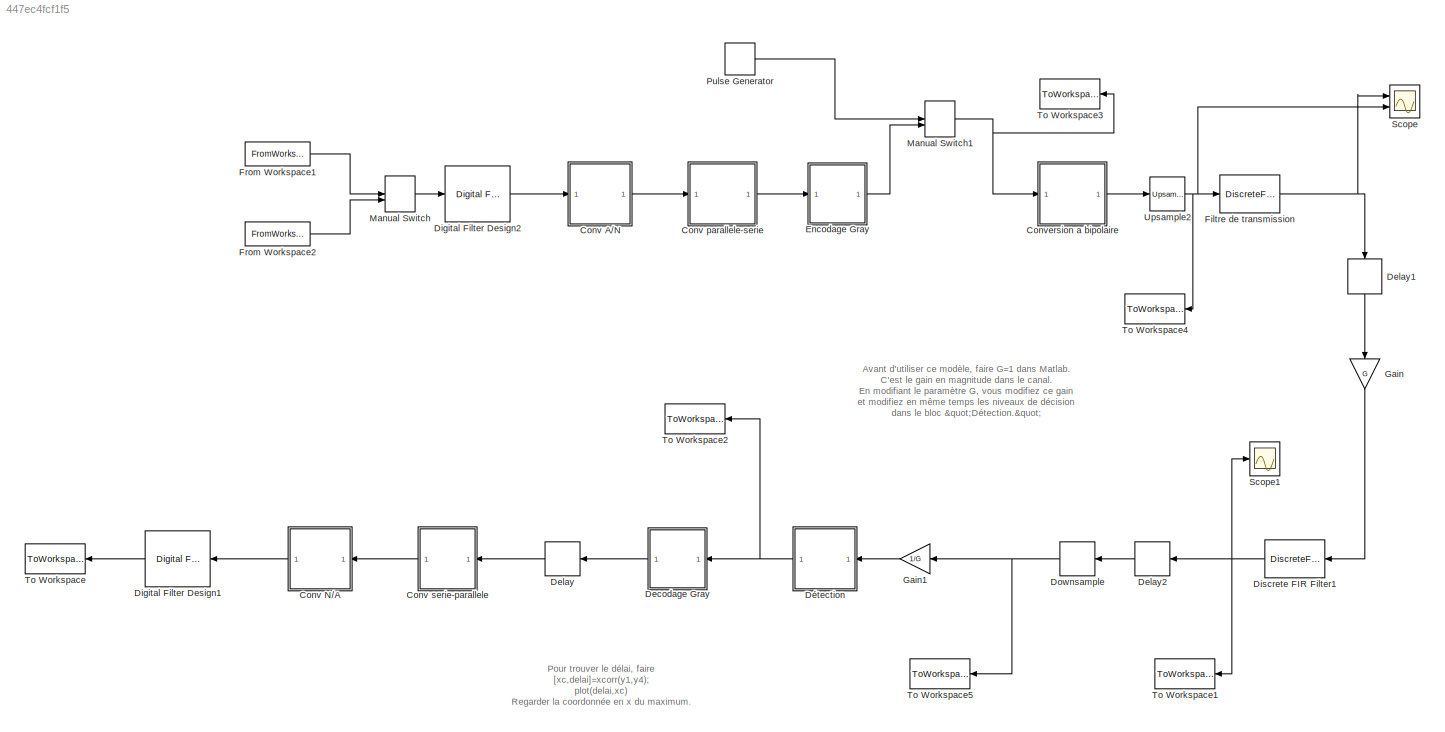
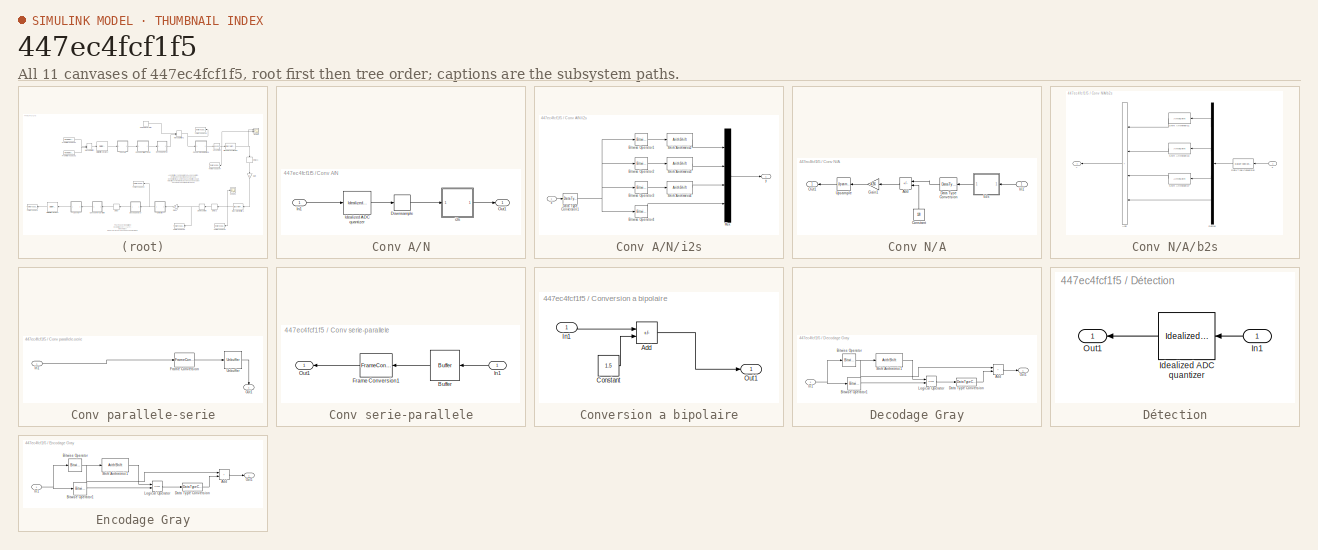
[diagram: thumbnail index - all 11 canvases of the model, root first then tree order]
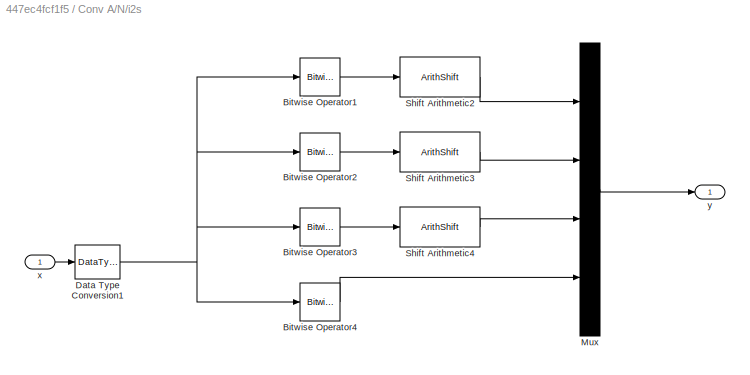
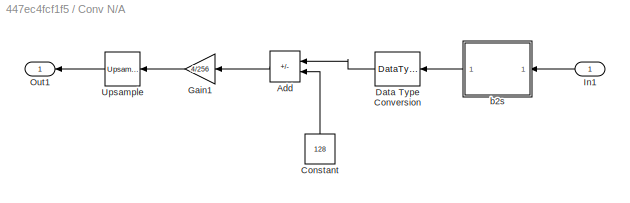
MODEL slx_447ec4fcf1f5
KIND model
CONFIG AbsTol = auto
CONFIG EnableMultiTasking = on
CONFIG FixedStep = auto
CONFIG MaxStep = auto
CONFIG MinStep = auto
CONFIG RelTol = 1e-3
CONFIG SampleTimeConstraint = Unconstrained
CONFIG SolverName = FixedStepDiscrete
CONFIG StartTime = 0.0
CONFIG StopTime = 8.75
BLOCK [SubSystem] Conv A//N
  Ports = [1, 1]
  RequestExecContextInheritance = off
BLOCK [DownSample] Conv A//N/Downsample
  InputProcessing = Elements as channels (sample based)
  RateOptions = Allow multirate processing
  UserDataPersistent = on
BLOCK [Reference] Conv A//N/Idealized ADC quantizer  REF=simulink_extras/Additional
Discrete/Idealized ADC quantizer
  AttributesFormatString = (settings: %<NumberOfConverterBits>-bit converter\nVmin: %<Vmin>, Vmax: %<Vmax>)
  Ports = [1, 1]
  SourceBlock = simulink_extras/Additional\nDiscrete/Idealized ADC quantizer
  SourceProductBaseCode = SL
  SourceType = IdealADC
BLOCK [Inport] Conv A//N/In1
BLOCK [Outport] Conv A//N/Out1
  VectorParamsAs1DForOutWhenUnconnected = off
BLOCK [SubSystem] Conv A//N/i2s
  Ports = [1, 1]
  RequestExecContextInheritance = off
BLOCK [Reference] Conv A//N/i2s/Bitwise Operator1  REF=simulink/Logic and Bit
Operations/Bitwise
Operator
  Ports = [1, 1]
  SourceBlock = simulink/Logic and Bit\nOperations/Bitwise\nOperator
  SourceProductBaseCode = SL
  SourceType = Bitwise Operator
BLOCK [Reference] Conv A//N/i2s/Bitwise Operator2  REF=simulink/Logic and Bit
Operations/Bitwise
Operator
  Ports = [1, 1]
  SourceBlock = simulink/Logic and Bit\nOperations/Bitwise\nOperator
  SourceProductBaseCode = SL
  SourceType = Bitwise Operator
BLOCK [Reference] Conv A//N/i2s/Bitwise Operator3  REF=simulink/Logic and Bit
Operations/Bitwise
Operator
  Ports = [1, 1]
  SourceBlock = simulink/Logic and Bit\nOperations/Bitwise\nOperator
  SourceProductBaseCode = SL
  SourceType = Bitwise Operator
BLOCK [Reference] Conv A//N/i2s/Bitwise Operator4  REF=simulink/Logic and Bit
Operations/Bitwise
Operator
  Ports = [1, 1]
  SourceBlock = simulink/Logic and Bit\nOperations/Bitwise\nOperator
  SourceProductBaseCode = SL
  SourceType = Bitwise Operator
BLOCK [DataTypeConversion] Conv A//N/i2s/Data Type Conversion1
  OutDataTypeStr = int16
  RndMeth = Floor
  SaturateOnIntegerOverflow = off
BLOCK [Mux] Conv A//N/i2s/Mux
  DisplayOption = bar
  Ports = [4, 1]
BLOCK [ArithShift] Conv A//N/i2s/Shift Arithmetic2
  BitShiftDirection = Right
  BitShiftNumber = 6
  InputPortMap = u0
  Ports = [1, 1]
BLOCK [ArithShift] Conv A//N/i2s/Shift Arithmetic3
  BitShiftDirection = Right
  BitShiftNumber = 4
  InputPortMap = u0
  Ports = [1, 1]
BLOCK [ArithShift] Conv A//N/i2s/Shift Arithmetic4
  BitShiftDirection = Right
  BitShiftNumber = 2
  InputPortMap = u0
  Ports = [1, 1]
BLOCK [Inport] Conv A//N/i2s/x
BLOCK [Outport] Conv A//N/i2s/y
  VectorParamsAs1DForOutWhenUnconnected = off
BLOCK [SubSystem] Conv N//A
  Ports = [1, 1]
  RequestExecContextInheritance = off
BLOCK [Sum] Conv N//A/Add
  IconShape = rectangular
  Inputs = +-
  Ports = [2, 1]
BLOCK [Constant] Conv N//A/Constant
  NameLocation = right
  Value = 128
BLOCK [DataTypeConversion] Conv N//A/Data Type Conversion
  OutDataTypeStr = double
  RndMeth = Floor
  SaturateOnIntegerOverflow = off
BLOCK [Gain] Conv N//A/Gain1
  Gain = 4/256
  NameLocation = top
BLOCK [Inport] Conv N//A/In1
BLOCK [Outport] Conv N//A/Out1
  VectorParamsAs1DForOutWhenUnconnected = off
BLOCK [Reference] Conv N//A/Upsample  REF=dspsigops/Upsample
  Ports = [1, 1]
  SourceBlock = dspsigops/Upsample
  SourceProductBaseCode = DS
  SourceType = Upsample
  UserDataPersistent = on
BLOCK [SubSystem] Conv N//A/b2s
  Ports = [1, 1]
  RequestExecContextInheritance = off
BLOCK [Sum] Conv N//A/b2s/Add
  IconShape = rectangular
  Inputs = ++++
  Ports = [4, 1]
BLOCK [DataTypeConversion] Conv N//A/b2s/Data Type Conversion
  OutDataTypeStr = int16
  RndMeth = Round
  SaturateOnIntegerOverflow = off
BLOCK [Demux] Conv N//A/b2s/Demux
  Ports = [1, 4]
BLOCK [ArithShift] Conv N//A/b2s/Shift Arithmetic1
  BitShiftDirection = Left
  BitShiftNumber = 6
  InputPortMap = u0
  Ports = [1, 1]
BLOCK [ArithShift] Conv N//A/b2s/Shift Arithmetic3
  BitShiftDirection = Left
  BitShiftNumber = 4
  InputPortMap = u0
  Ports = [1, 1]
BLOCK [ArithShift] Conv N//A/b2s/Shift Arithmetic7
  BitShiftDirection = Left
  BitShiftNumber = 2
  InputPortMap = u0
  Ports = [1, 1]
BLOCK [Inport] Conv N//A/b2s/x
BLOCK [Outport] Conv N//A/b2s/y
  VectorParamsAs1DForOutWhenUnconnected = off
BLOCK [SubSystem] Conv parallele-serie
  Ports = [1, 1]
  RequestExecContextInheritance = off
BLOCK [FrameConversion] Conv parallele-serie/Frame Conversion
  Ports = [1, 1]
BLOCK [Inport] Conv parallele-serie/In1
BLOCK [Outport] Conv parallele-serie/Out1
  NameLocation = right
  VectorParamsAs1DForOutWhenUnconnected = off
BLOCK [Unbuffer] Conv parallele-serie/Unbuffer
  Ports = [1, 1]
BLOCK [SubSystem] Conv serie-parallele
  Ports = [1, 1]
  RequestExecContextInheritance = off
BLOCK [Buffer] Conv serie-parallele/Buffer
  N = 4
BLOCK [FrameConversion] Conv serie-parallele/Frame Conversion1
  OutFrame = Sample-based
  Ports = [1, 1]
BLOCK [Inport] Conv serie-parallele/In1
BLOCK [Outport] Conv serie-parallele/Out1
  VectorParamsAs1DForOutWhenUnconnected = off
BLOCK [SubSystem] Conversion a bipolaire
  Ports = [1, 1]
  RequestExecContextInheritance = off
BLOCK [Sum] Conversion a bipolaire/Add
  IconShape = rectangular
  Inputs = +-
  Ports = [2, 1]
BLOCK [Constant] Conversion a bipolaire/Constant
  Value = 1.5
BLOCK [Inport] Conversion a bipolaire/In1
BLOCK [Outport] Conversion a bipolaire/Out1
  VectorParamsAs1DForOutWhenUnconnected = off
BLOCK [SubSystem] Decodage Gray
  Ports = [1, 1]
  RequestExecContextInheritance = off
BLOCK [Sum] Decodage Gray/Add
  IconShape = rectangular
  Ports = [2, 1]
BLOCK [Reference] Decodage Gray/Bitwise Operator  REF=simulink/Logic and Bit
Operations/Bitwise
Operator
  Ports = [1, 1]
  SourceBlock = simulink/Logic and Bit\nOperations/Bitwise\nOperator
  SourceProductBaseCode = SL
  SourceType = Bitwise Operator
BLOCK [Reference] Decodage Gray/Bitwise Operator1  REF=simulink/Logic and Bit
Operations/Bitwise
Operator
  Ports = [1, 1]
  SourceBlock = simulink/Logic and Bit\nOperations/Bitwise\nOperator
  SourceProductBaseCode = SL
  SourceType = Bitwise Operator
BLOCK [DataTypeConversion] Decodage Gray/Data Type Conversion
  OutDataTypeStr = int8
  RndMeth = Floor
  SaturateOnIntegerOverflow = off
BLOCK [Inport] Decodage Gray/In1
BLOCK [Logic] Decodage Gray/Logical Operator
  AllPortsSameDT = off
  Operator = XOR
  Ports = [2, 1]
BLOCK [Outport] Decodage Gray/Out1
  VectorParamsAs1DForOutWhenUnconnected = off
BLOCK [ArithShift] Decodage Gray/Shift Arithmetic1
  BitShiftDirection = Right
  BitShiftNumber = 1
  InputPortMap = u0
  Ports = [1, 1]
BLOCK [Delay] Delay
  DelayLength = 1
  InitialCondition = 0
  InputPortMap = u0
  Ports = [1, 1]
BLOCK [Delay] Delay1
  DelayLength = 12
  InitialCondition = 0
  InputPortMap = u0
  NameLocation = right
  Ports = [1, 1]
BLOCK [Delay] Delay2
  DelayLength = 9
  InitialCondition = 0
  InputPortMap = u0
  Ports = [1, 1]
BLOCK [Reference] Digital Filter Design1  REF=dsparch4/Digital
Filter Design
  Ports = [1, 1]
  SourceBlock = dsparch4/Digital\nFilter Design
  SourceProductBaseCode = DS
  SourceType = Digital Filter Design
  UserDataPersistent = on
BLOCK [Reference] Digital Filter Design2  REF=dsparch4/Digital
Filter Design
  NameLocation = top
  Ports = [1, 1]
  SourceBlock = dsparch4/Digital\nFilter Design
  SourceProductBaseCode = DS
  SourceType = Digital Filter Design
  UserDataPersistent = on
BLOCK [DiscreteFir] Discrete FIR Filter1
  Coefficients = ones(1,20)
  InputPortMap = u0
  OutputPortMap = o0
  Ports = [1, 1]
BLOCK [DownSample] Downsample
  InputProcessing = Elements as channels (sample based)
  N = 20
  RateOptions = Allow multirate processing
BLOCK [SubSystem] Détection
  Ports = [1, 1]
  RequestExecContextInheritance = off
BLOCK [Reference] Détection/Idealized ADC quantizer  REF=simulink_extras/Additional
Discrete/Idealized ADC quantizer
  AttributesFormatString = (settings: %<NumberOfConverterBits>-bit converter\nVmin: %<Vmin>, Vmax: %<Vmax>)
  Ports = [1, 1]
  SourceBlock = simulink_extras/Additional\nDiscrete/Idealized ADC quantizer
  SourceProductBaseCode = SL
  SourceType = IdealADC
BLOCK [Inport] Détection/In1
BLOCK [Outport] Détection/Out1
BLOCK [SubSystem] Encodage Gray
  Ports = [1, 1]
  RequestExecContextInheritance = off
BLOCK [Sum] Encodage Gray/Add
  IconShape = rectangular
  Ports = [2, 1]
BLOCK [Reference] Encodage Gray/Bitwise Operator  REF=simulink/Logic and Bit
Operations/Bitwise
Operator
  Ports = [1, 1]
  SourceBlock = simulink/Logic and Bit\nOperations/Bitwise\nOperator
  SourceProductBaseCode = SL
  SourceType = Bitwise Operator
BLOCK [Reference] Encodage Gray/Bitwise Operator1  REF=simulink/Logic and Bit
Operations/Bitwise
Operator
  Ports = [1, 1]
  SourceBlock = simulink/Logic and Bit\nOperations/Bitwise\nOperator
  SourceProductBaseCode = SL
  SourceType = Bitwise Operator
BLOCK [DataTypeConversion] Encodage Gray/Data Type Conversion
  OutDataTypeStr = int8
  RndMeth = Floor
  SaturateOnIntegerOverflow = off
BLOCK [Inport] Encodage Gray/In1
BLOCK [Logic] Encodage Gray/Logical Operator
  AllPortsSameDT = off
  Operator = XOR
  Ports = [2, 1]
BLOCK [Outport] Encodage Gray/Out1
  VectorParamsAs1DForOutWhenUnconnected = off
BLOCK [ArithShift] Encodage Gray/Shift Arithmetic1
  BitShiftDirection = Right
  BitShiftNumber = 1
  InputPortMap = u0
  Ports = [1, 1]
BLOCK [DiscreteFir] Filtre de transmission
  Coefficients = ones(1,20)
  InputPortMap = u0
  OutputPortMap = o0
  Ports = [1, 1]
BLOCK [FromWorkspace] From Workspace1
  Interpolate = off
  OutputAfterFinalValue = Setting to zero
  SampleTime = 1/16000
  VariableName = Sonm16
BLOCK [FromWorkspace] From Workspace2
  Interpolate = off
  OutputAfterFinalValue = Setting to zero
  SampleTime = 1/16000
  VariableName = Sonf16
BLOCK [Gain] Gain
  Gain = G
  NameLocation = left
BLOCK [Gain] Gain1
  Gain = 1/G
  NameLocation = top
BLOCK [ManualSwitch] Manual Switch
BLOCK [ManualSwitch] Manual Switch1
  CurrentSetting = 0
BLOCK [DiscretePulseGenerator] Pulse Generator
  Amplitude = 3
  Ports = [0, 1]
  SampleTime = 1/32000
BLOCK [Scope] Scope
  Floating = off
  NumInputPorts = 2
  Ports = [2]
  ScopeSpecificationString = Simulink.scopes.TimeScopeBlockCfg('CurrentConfiguration', extmgr.ConfigurationSet(extmgr.Configuration('Core','General UI',true),extmgr.Configuration('Core','Source UI',true),extmgr.Configuration('Sources','WiredSimulink',true),extmgr.Configuration('Visuals','Time Domain',true,'SerializedDisplays',{struct('MinYLimReal','-1.875','MaxYLimReal','1.875','YLabelReal','','MinYLimMag','0.00000','MaxYLimM...<+1419ch>
BLOCK [Scope] Scope1
  Floating = off
  NumInputPorts = 1
  Ports = [1]
  ScopeSpecificationString = Simulink.scopes.TimeScopeBlockCfg('CurrentConfiguration', extmgr.ConfigurationSet(extmgr.Configuration('Core','General UI',true),extmgr.Configuration('Core','Source UI',true),extmgr.Configuration('Sources','WiredSimulink',true,'DataLoggingVariableName','ScopeData1'),extmgr.Configuration('Visuals','Time Domain',true,'SerializedDisplays',{struct('MinYLimReal','-37.5','MaxYLimReal','37.5','YLabelReal...<+1436ch>
BLOCK [ToWorkspace] To Workspace
  MaxDataPoints = inf
  Ports = [1]
  SampleTime = -1
  Save2DSignal = 2-D array (concatenate along first dimension)
  VariableName = y
BLOCK [ToWorkspace] To Workspace1
  MaxDataPoints = inf
  Ports = [1]
  SampleTime = -1
  Save2DSignal = 2-D array (concatenate along first dimension)
  VariableName = y1
BLOCK [ToWorkspace] To Workspace2
  MaxDataPoints = inf
  Ports = [1]
  SampleTime = -1
  Save2DSignal = 2-D array (concatenate along first dimension)
  VariableName = y2
BLOCK [ToWorkspace] To Workspace3
  MaxDataPoints = inf
  Ports = [1]
  SampleTime = -1
  Save2DSignal = 2-D array (concatenate along first dimension)
  VariableName = y3
BLOCK [ToWorkspace] To Workspace4
  MaxDataPoints = inf
  Ports = [1]
  SampleTime = -1
  Save2DSignal = 2-D array (concatenate along first dimension)
  VariableName = y4
BLOCK [ToWorkspace] To Workspace5
  MaxDataPoints = inf
  Ports = [1]
  SampleTime = -1
  Save2DSignal = 2-D array (concatenate along first dimension)
  VariableName = y5
BLOCK [Reference] Upsample2  REF=dspsigops/Upsample
  Ports = [1, 1]
  SourceBlock = dspsigops/Upsample
  SourceProductBaseCode = DS
  SourceType = Upsample
  UserDataPersistent = on
ANNOTATION (root): Avant d'utiliser ce modèle, faire G=1 dans Matlab. C'est le gain en magnitude dans le canal. En modifiant le paramètre G, vous modifiez ce gain et modifiez en même temps les niveaux de décision dans le bloc "Détection."
ANNOTATION (root): Pour trouver le délai, faire [xc,delai]=xcorr(y1,y4); plot(delai,xc) Regarder la coordonnée en x du maximum.
LINE Conv A//N/Downsample:1 -> Conv A//N/i2s:1
LINE Conv A//N/Idealized ADC quantizer:1 -> Conv A//N/Downsample:1
LINE Conv A//N/In1:1 -> Conv A//N/Idealized ADC quantizer:1
LINE Conv A//N/i2s/Bitwise Operator1:1 -> Conv A//N/i2s/Shift Arithmetic2:1
LINE Conv A//N/i2s/Bitwise Operator2:1 -> Conv A//N/i2s/Shift Arithmetic3:1
LINE Conv A//N/i2s/Bitwise Operator3:1 -> Conv A//N/i2s/Shift Arithmetic4:1
LINE Conv A//N/i2s/Bitwise Operator4:1 -> Conv A//N/i2s/Mux:4
NET Conv A//N/i2s/Data Type Conversion1:1 -> Conv A//N/i2s/Bitwise Operator1:1, Conv A//N/i2s/Bitwise Operator2:1, Conv A//N/i2s/Bitwise Operator3:1, Conv A//N/i2s/Bitwise Operator4:1
LINE Conv A//N/i2s/Mux:1 -> Conv A//N/i2s/y:1
LINE Conv A//N/i2s/Shift Arithmetic2:1 -> Conv A//N/i2s/Mux:1
LINE Conv A//N/i2s/Shift Arithmetic3:1 -> Conv A//N/i2s/Mux:2
LINE Conv A//N/i2s/Shift Arithmetic4:1 -> Conv A//N/i2s/Mux:3
LINE Conv A//N/i2s/x:1 -> Conv A//N/i2s/Data Type Conversion1:1
LINE Conv A//N/i2s:1 -> Conv A//N/Out1:1
LINE Conv A//N:1 -> Conv parallele-serie:1
LINE Conv N//A/Add:1 -> Conv N//A/Gain1:1
LINE Conv N//A/Constant:1 -> Conv N//A/Add:2
LINE Conv N//A/Data Type Conversion:1 -> Conv N//A/Add:1
LINE Conv N//A/Gain1:1 -> Conv N//A/Upsample:1
LINE Conv N//A/In1:1 -> Conv N//A/b2s:1
LINE Conv N//A/Upsample:1 -> Conv N//A/Out1:1
LINE Conv N//A/b2s/Add:1 -> Conv N//A/b2s/y:1
LINE Conv N//A/b2s/Data Type Conversion:1 -> Conv N//A/b2s/Demux:1
LINE Conv N//A/b2s/Demux:1 -> Conv N//A/b2s/Shift Arithmetic1:1
LINE Conv N//A/b2s/Demux:2 -> Conv N//A/b2s/Shift Arithmetic3:1
LINE Conv N//A/b2s/Demux:3 -> Conv N//A/b2s/Shift Arithmetic7:1
LINE Conv N//A/b2s/Demux:4 -> Conv N//A/b2s/Add:4
LINE Conv N//A/b2s/Shift Arithmetic1:1 -> Conv N//A/b2s/Add:1
LINE Conv N//A/b2s/Shift Arithmetic3:1 -> Conv N//A/b2s/Add:2
LINE Conv N//A/b2s/Shift Arithmetic7:1 -> Conv N//A/b2s/Add:3
LINE Conv N//A/b2s/x:1 -> Conv N//A/b2s/Data Type Conversion:1
LINE Conv N//A/b2s:1 -> Conv N//A/Data Type Conversion:1
LINE Conv N//A:1 -> Digital Filter Design1:1
LINE Conv parallele-serie/Frame Conversion:1 -> Conv parallele-serie/Unbuffer:1
LINE Conv parallele-serie/In1:1 -> Conv parallele-serie/Frame Conversion:1
LINE Conv parallele-serie/Unbuffer:1 -> Conv parallele-serie/Out1:1
LINE Conv parallele-serie:1 -> Encodage Gray:1
LINE Conv serie-parallele/Buffer:1 -> Conv serie-parallele/Frame Conversion1:1
LINE Conv serie-parallele/Frame Conversion1:1 -> Conv serie-parallele/Out1:1
LINE Conv serie-parallele/In1:1 -> Conv serie-parallele/Buffer:1
LINE Conv serie-parallele:1 -> Conv N//A:1
LINE Conversion a bipolaire/Add:1 -> Conversion a bipolaire/Out1:1
LINE Conversion a bipolaire/Constant:1 -> Conversion a bipolaire/Add:2
LINE Conversion a bipolaire/In1:1 -> Conversion a bipolaire/Add:1
LINE Conversion a bipolaire:1 -> Upsample2:1
LINE Decodage Gray/Add:1 -> Decodage Gray/Out1:1
LINE Decodage Gray/Bitwise Operator1:1 -> Decodage Gray/Logical Operator:2
NET Decodage Gray/Bitwise Operator:1 -> Decodage Gray/Add:1, Decodage Gray/Shift Arithmetic1:1
LINE Decodage Gray/Data Type Conversion:1 -> Decodage Gray/Add:2
NET Decodage Gray/In1:1 -> Decodage Gray/Bitwise Operator1:1, Decodage Gray/Bitwise Operator:1
LINE Decodage Gray/Logical Operator:1 -> Decodage Gray/Data Type Conversion:1
LINE Decodage Gray/Shift Arithmetic1:1 -> Decodage Gray/Logical Operator:1
LINE Decodage Gray:1 -> Delay:1
LINE Delay1:1 -> Gain:1
LINE Delay2:1 -> Downsample:1
LINE Delay:1 -> Conv serie-parallele:1
LINE Digital Filter Design1:1 -> To Workspace:1
LINE Digital Filter Design2:1 -> Conv A//N:1
NET Discrete FIR Filter1:1 -> Delay2:1, Scope1:1, To Workspace1:1
NET Downsample:1 -> Gain1:1, To Workspace5:1
LINE Détection/Idealized ADC quantizer:1 -> Détection/Out1:1
LINE Détection/In1:1 -> Détection/Idealized ADC quantizer:1
NET Détection:1 -> Decodage Gray:1, To Workspace2:1
LINE Encodage Gray/Add:1 -> Encodage Gray/Out1:1
LINE Encodage Gray/Bitwise Operator1:1 -> Encodage Gray/Logical Operator:2
NET Encodage Gray/Bitwise Operator:1 -> Encodage Gray/Add:1, Encodage Gray/Shift Arithmetic1:1
LINE Encodage Gray/Data Type Conversion:1 -> Encodage Gray/Add:2
NET Encodage Gray/In1:1 -> Encodage Gray/Bitwise Operator1:1, Encodage Gray/Bitwise Operator:1
LINE Encodage Gray/Logical Operator:1 -> Encodage Gray/Data Type Conversion:1
LINE Encodage Gray/Shift Arithmetic1:1 -> Encodage Gray/Logical Operator:1
LINE Encodage Gray:1 -> Manual Switch1:2
NET Filtre de transmission:1 -> Delay1:1, Scope:1
LINE From Workspace1:1 -> Manual Switch:1
LINE From Workspace2:1 -> Manual Switch:2
LINE Gain1:1 -> Détection:1
LINE Gain:1 -> Discrete FIR Filter1:1
NET Manual Switch1:1 -> Conversion a bipolaire:1, To Workspace3:1
LINE Manual Switch:1 -> Digital Filter Design2:1
LINE Pulse Generator:1 -> Manual Switch1:1
NET Upsample2:1 -> Filtre de transmission:1, Scope:2, To Workspace4:1
note: NET lines group one-source signal fan-out (src -> all destinations, sorted); 1:1 wires keep LINE
